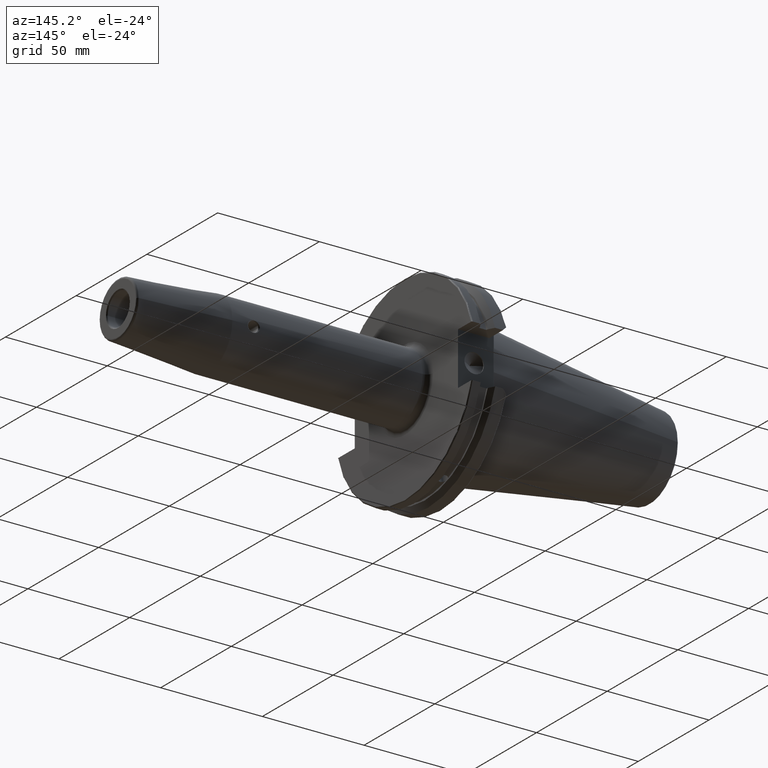
[diagram: clean part render]
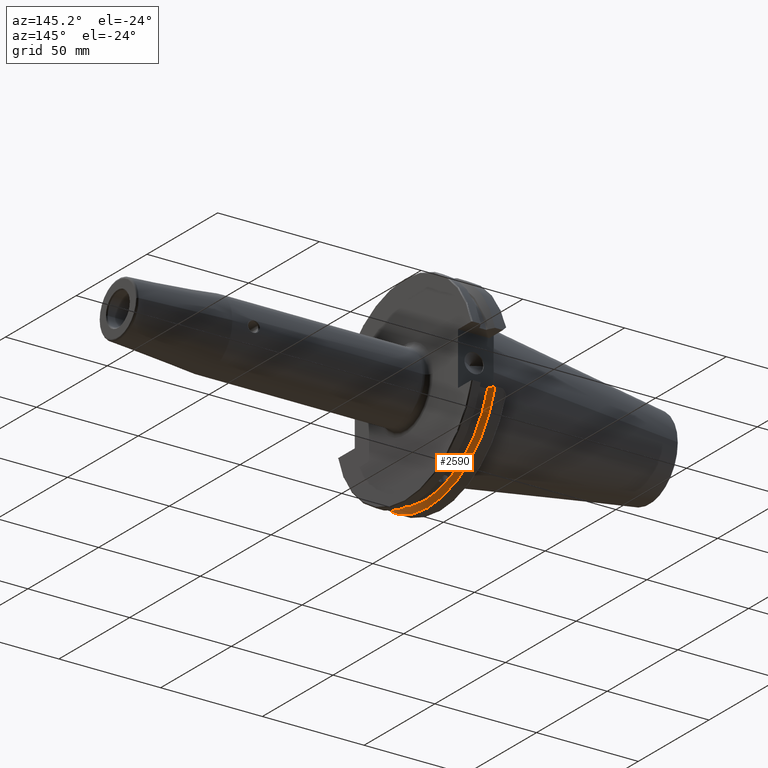
[diagram: same view with one face highlighted and labeled with its STEP entity id]
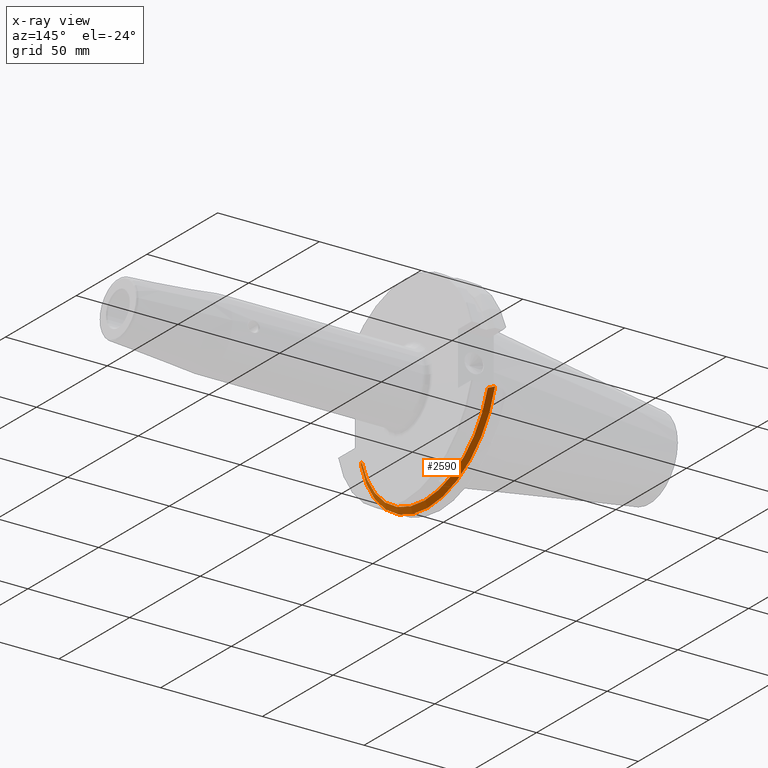
[diagram: x-ray of the same camera — body ghosted, the highlighted face saturated]
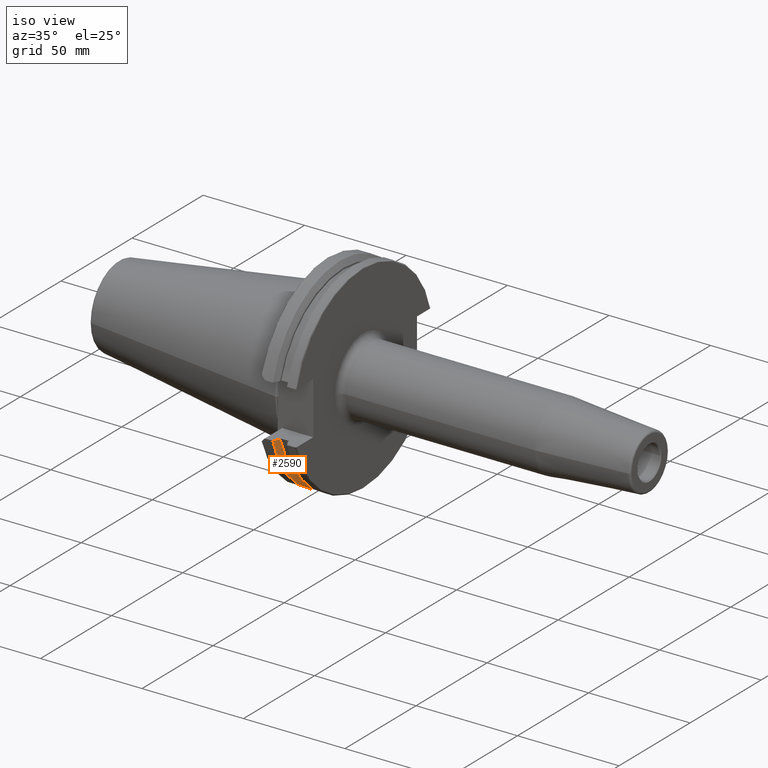
[diagram: same view with one face highlighted and labeled with its STEP entity id]
A machine part, auxiliary view. The second image highlights one B-rep face of the part: STEP entity #2590.
The next image is the same camera in x-ray: the body ghosted, the highlighted face saturated — about 0% of this face is hidden behind the body in this view.
A second angle (iso view) of the same face is appended — the face is thin or edge-on in the first view.
In plain terms, the highlighted conical surface has half-angle 60 deg.
Its self-contained STEP definition (entity closure, byte-faithful):
#749=CARTESIAN_POINT('',(7.607990965951E0,-4.747807553229E1,-1.295E1));
#750=CARTESIAN_POINT('',(7.790685635382E0,-4.715007932336E1,-1.295E1));
#751=CARTESIAN_POINT('',(8.153624197041E0,-4.649801614774E1,-1.295E1));
#752=CARTESIAN_POINT('',(8.690647010417E0,-4.553173653468E1,-1.295E1));
#753=CARTESIAN_POINT('',(9.043768388004E0,-4.489535206389E1,-1.295E1));
#754=CARTESIAN_POINT('',(9.2191E0,-4.457911479736E1,-1.295E1));
#756=CARTESIAN_POINT('',(9.2191E0,0.E0,0.E0));
#757=DIRECTION('',(1.E0,0.E0,0.E0));
#758=DIRECTION('',(0.E0,-9.603019387269E-1,-2.789626972864E-1));
#759=AXIS2_PLACEMENT_3D('',#756,#757,#758);
#761=CARTESIAN_POINT('',(9.2191E0,4.457911479736E1,-1.295E1));
#762=CARTESIAN_POINT('',(9.043790629607E0,4.489531194778E1,-1.295E1));
#763=CARTESIAN_POINT('',(8.690698971701E0,4.553164294587E1,-1.295E1));
#764=CARTESIAN_POINT('',(8.153676968952E0,4.649792128699E1,-1.295E1));
#765=CARTESIAN_POINT('',(7.790708277096E0,4.715003867413E1,-1.295E1));
#766=CARTESIAN_POINT('',(7.607990965951E0,4.747807553229E1,-1.295E1));
#768=CARTESIAN_POINT('',(7.607990965951E0,0.E0,0.E0));
#769=DIRECTION('',(-1.E0,0.E0,0.E0));
#770=DIRECTION('',(0.E0,9.647564243290E-1,-2.631445262891E-1));
#771=AXIS2_PLACEMENT_3D('',#768,#769,#770);
#1411=CARTESIAN_POINT('',(9.2191E0,4.457911479736E1,-1.295E1));
#1413=VERTEX_POINT('',#1411);
#1424=VERTEX_POINT('',#766);
#1430=VERTEX_POINT('',#749);
#1431=VERTEX_POINT('',#754);
#2579=CARTESIAN_POINT('',(8.413545482976E0,0.E0,0.E0));
#2580=DIRECTION('',(-1.E0,0.E0,0.E0));
#2581=DIRECTION('',(0.E0,1.E0,0.E0));
#2582=AXIS2_PLACEMENT_3D('',#2579,#2580,#2581);
#2583=CONICAL_SURFACE('',#2582,4.781723864825E1,6.E1);
#2584=ORIENTED_EDGE('',*,*,#2246,.T.);
#2585=ORIENTED_EDGE('',*,*,#2571,.T.);
#2586=ORIENTED_EDGE('',*,*,#2299,.T.);
#2587=ORIENTED_EDGE('',*,*,#2175,.T.);
#2588=EDGE_LOOP('',(#2584,#2585,#2586,#2587));
#2589=FACE_OUTER_BOUND('',#2588,.F.);
#2590=ADVANCED_FACE('',(#2589),#2583,.T.);
#755=B_SPLINE_CURVE_WITH_KNOTS('',3,(#749,#750,#751,#752,#753,#754),
.UNSPECIFIED.,.F.,.F.,(4,1,1,4),(0.E0,3.333333333333E-1,6.666666666667E-1,1.E0),
.UNSPECIFIED.);
#760=CIRCLE('',#759,4.642197729649E1);
#767=B_SPLINE_CURVE_WITH_KNOTS('',3,(#761,#762,#763,#764,#765,#766),
.UNSPECIFIED.,.F.,.F.,(4,1,1,4),(0.E0,3.333333333333E-1,6.666666666667E-1,1.E0),
.UNSPECIFIED.);
#772=CIRCLE('',#771,4.92125E1);
#2175=EDGE_CURVE('',#1424,#1430,#772,.T.);
#2246=EDGE_CURVE('',#1430,#1431,#755,.T.);
#2299=EDGE_CURVE('',#1413,#1424,#767,.T.);
#2571=EDGE_CURVE('',#1431,#1413,#760,.T.);